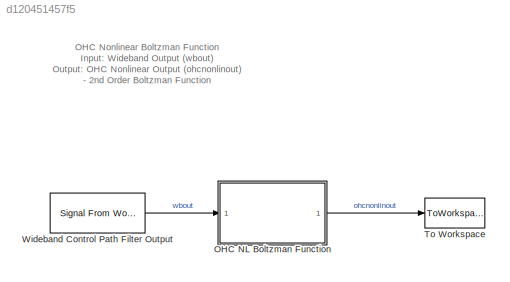
MODEL slx_d120451457f5
KIND model
CONFIG AbsTol = auto
CONFIG EnableMultiTasking = off
CONFIG FixedStep = auto
CONFIG InitFcn = OHC_NL_Boltzman_Test_Parameters
CONFIG MaxStep = auto
CONFIG MinStep = auto
CONFIG RelTol = 1e-3
CONFIG SampleTimeConstraint = Unconstrained
CONFIG Solver = VariableStepAuto
CONFIG SolverName = VariableStepAuto
CONFIG StartTime = 0.0
CONFIG StopFcn = Verify_OHC_NL_Boltzman_Function
CONFIG StopTime = testtime
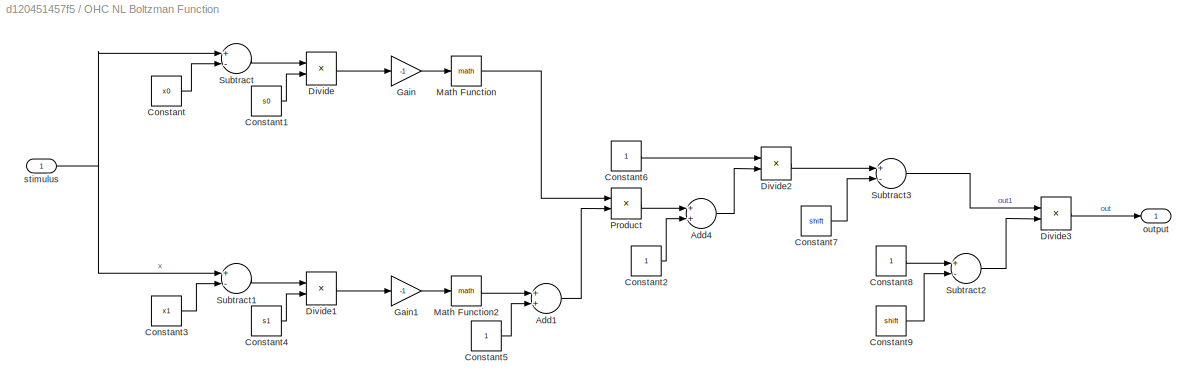
BLOCK [SubSystem] OHC NL Boltzman Function
  Ports = [1, 1]
  RequestExecContextInheritance = off
  ShowPortLabels = none
BLOCK [Sum] OHC NL Boltzman Function/Add1
  InputSameDT = off
  OutDataTypeStr = Inherit: Inherit via internal rule
  Ports = [2, 1]
  SaturateOnIntegerOverflow = off
BLOCK [Sum] OHC NL Boltzman Function/Add4
  InputSameDT = off
  OutDataTypeStr = Inherit: Inherit via internal rule
  Ports = [2, 1]
  SaturateOnIntegerOverflow = off
BLOCK [Constant] OHC NL Boltzman Function/Constant
  SampleTime = -1
  Value = x0
BLOCK [Constant] OHC NL Boltzman Function/Constant1
  SampleTime = -1
  Value = s0
BLOCK [Constant] OHC NL Boltzman Function/Constant2
  SampleTime = -1
BLOCK [Constant] OHC NL Boltzman Function/Constant3
  SampleTime = -1
  Value = x1
BLOCK [Constant] OHC NL Boltzman Function/Constant4
  SampleTime = -1
  Value = s1
BLOCK [Constant] OHC NL Boltzman Function/Constant5
  SampleTime = -1
BLOCK [Constant] OHC NL Boltzman Function/Constant6
  SampleTime = -1
BLOCK [Constant] OHC NL Boltzman Function/Constant7
  SampleTime = -1
  Value = shift
BLOCK [Constant] OHC NL Boltzman Function/Constant8
  SampleTime = -1
BLOCK [Constant] OHC NL Boltzman Function/Constant9
  SampleTime = -1
  Value = shift
BLOCK [Product] OHC NL Boltzman Function/Divide
  InputSameDT = off
  Inputs = */
  OutDataTypeStr = Inherit: Inherit via internal rule
  Ports = [2, 1]
BLOCK [Product] OHC NL Boltzman Function/Divide1
  InputSameDT = off
  Inputs = */
  OutDataTypeStr = Inherit: Inherit via internal rule
  Ports = [2, 1]
BLOCK [Product] OHC NL Boltzman Function/Divide2
  InputSameDT = off
  Inputs = */
  OutDataTypeStr = Inherit: Inherit via internal rule
  Ports = [2, 1]
BLOCK [Product] OHC NL Boltzman Function/Divide3
  InputSameDT = off
  Inputs = */
  OutDataTypeStr = Inherit: Inherit via internal rule
  Ports = [2, 1]
BLOCK [Gain] OHC NL Boltzman Function/Gain
  Gain = -1
  OutDataTypeStr = Inherit: Inherit via internal rule
  ParamDataTypeStr = Inherit: Inherit via internal rule
  SaturateOnIntegerOverflow = off
BLOCK [Gain] OHC NL Boltzman Function/Gain1
  Gain = -1
  OutDataTypeStr = Inherit: Inherit via internal rule
  ParamDataTypeStr = Inherit: Inherit via internal rule
  SaturateOnIntegerOverflow = off
BLOCK [Math] OHC NL Boltzman Function/Math Function
  Ports = [1, 1]
BLOCK [Math] OHC NL Boltzman Function/Math Function2
  Ports = [1, 1]
BLOCK [Product] OHC NL Boltzman Function/Product
  InputSameDT = off
  OutDataTypeStr = Inherit: Inherit via internal rule
  Ports = [2, 1]
  RndMeth = Floor
  SaturateOnIntegerOverflow = off
BLOCK [Sum] OHC NL Boltzman Function/Subtract
  InputSameDT = off
  Inputs = +-
  OutDataTypeStr = Inherit: Inherit via internal rule
  Ports = [2, 1]
  SaturateOnIntegerOverflow = off
BLOCK [Sum] OHC NL Boltzman Function/Subtract1
  InputSameDT = off
  Inputs = +-
  OutDataTypeStr = Inherit: Inherit via internal rule
  Ports = [2, 1]
  SaturateOnIntegerOverflow = off
BLOCK [Sum] OHC NL Boltzman Function/Subtract2
  InputSameDT = off
  Inputs = +-
  OutDataTypeStr = Inherit: Inherit via internal rule
  Ports = [2, 1]
  SaturateOnIntegerOverflow = off
BLOCK [Sum] OHC NL Boltzman Function/Subtract3
  InputSameDT = off
  Inputs = +-
  OutDataTypeStr = Inherit: Inherit via internal rule
  Ports = [2, 1]
  SaturateOnIntegerOverflow = off
BLOCK [Outport] OHC NL Boltzman Function/output
  IconDisplay = Port number
BLOCK [Inport] OHC NL Boltzman Function/stimulus
  IconDisplay = Port number
BLOCK [ToWorkspace] To Workspace
  MaxDataPoints = inf
  Ports = [1]
  SampleTime = -1
  Save2DSignal = 2-D array (concatenate along first dimension)
  VariableName = ohcnonlinout
BLOCK [Reference] Wideband Control Path Filter Output  REF=dspsrcs4/Signal From
Workspace
  Ports = [0, 1]
  SourceBlock = dspsrcs4/Signal From\nWorkspace
  SourceProductBaseCode = DS
  SourceProductName = DSP System Toolbox
  SourceType = Signal From Workspace
ANNOTATION (root): OHC Nonlinear Boltzman Function Input : Wideband Output (wbout) Output : OHC Nonlinear Output (ohcnonlinout) - 2nd Order Boltzman Function
LINE OHC NL Boltzman Function/Add1:1 -> OHC NL Boltzman Function/Product:2
LINE OHC NL Boltzman Function/Add4:1 -> OHC NL Boltzman Function/Divide2:2
LINE OHC NL Boltzman Function/Constant1:1 -> OHC NL Boltzman Function/Divide:2
LINE OHC NL Boltzman Function/Constant2:1 -> OHC NL Boltzman Function/Add4:2
LINE OHC NL Boltzman Function/Constant3:1 -> OHC NL Boltzman Function/Subtract1:2
LINE OHC NL Boltzman Function/Constant4:1 -> OHC NL Boltzman Function/Divide1:2
LINE OHC NL Boltzman Function/Constant5:1 -> OHC NL Boltzman Function/Add1:2
LINE OHC NL Boltzman Function/Constant6:1 -> OHC NL Boltzman Function/Divide2:1
LINE OHC NL Boltzman Function/Constant7:1 -> OHC NL Boltzman Function/Subtract3:2
LINE OHC NL Boltzman Function/Constant8:1 -> OHC NL Boltzman Function/Subtract2:1
LINE OHC NL Boltzman Function/Constant9:1 -> OHC NL Boltzman Function/Subtract2:2
LINE OHC NL Boltzman Function/Constant:1 -> OHC NL Boltzman Function/Subtract:2
LINE OHC NL Boltzman Function/Divide1:1 -> OHC NL Boltzman Function/Gain1:1
LINE OHC NL Boltzman Function/Divide2:1 -> OHC NL Boltzman Function/Subtract3:1
LINE OHC NL Boltzman Function/Divide3:1 -> OHC NL Boltzman Function/output:1
LINE OHC NL Boltzman Function/Divide:1 -> OHC NL Boltzman Function/Gain:1
LINE OHC NL Boltzman Function/Gain1:1 -> OHC NL Boltzman Function/Math Function2:1
LINE OHC NL Boltzman Function/Gain:1 -> OHC NL Boltzman Function/Math Function:1
LINE OHC NL Boltzman Function/Math Function2:1 -> OHC NL Boltzman Function/Add1:1
LINE OHC NL Boltzman Function/Math Function:1 -> OHC NL Boltzman Function/Product:1
LINE OHC NL Boltzman Function/Product:1 -> OHC NL Boltzman Function/Add4:1
LINE OHC NL Boltzman Function/Subtract1:1 -> OHC NL Boltzman Function/Divide1:1
LINE OHC NL Boltzman Function/Subtract2:1 -> OHC NL Boltzman Function/Divide3:2
LINE OHC NL Boltzman Function/Subtract3:1 -> OHC NL Boltzman Function/Divide3:1
LINE OHC NL Boltzman Function/Subtract:1 -> OHC NL Boltzman Function/Divide:1
NET OHC NL Boltzman Function/stimulus:1 -> OHC NL Boltzman Function/Subtract1:1, OHC NL Boltzman Function/Subtract:1
LINE OHC NL Boltzman Function:1 -> To Workspace:1
LINE Wideband Control Path Filter Output:1 -> OHC NL Boltzman Function:1
note: NET lines group one-source signal fan-out (src -> all destinations, sorted); 1:1 wires keep LINE
